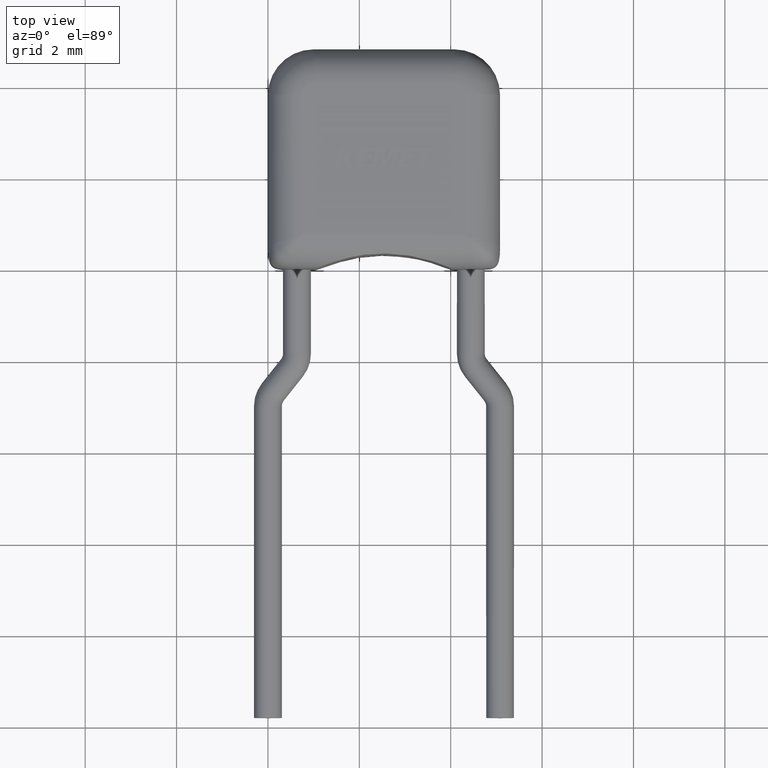
[diagram: clean part render]
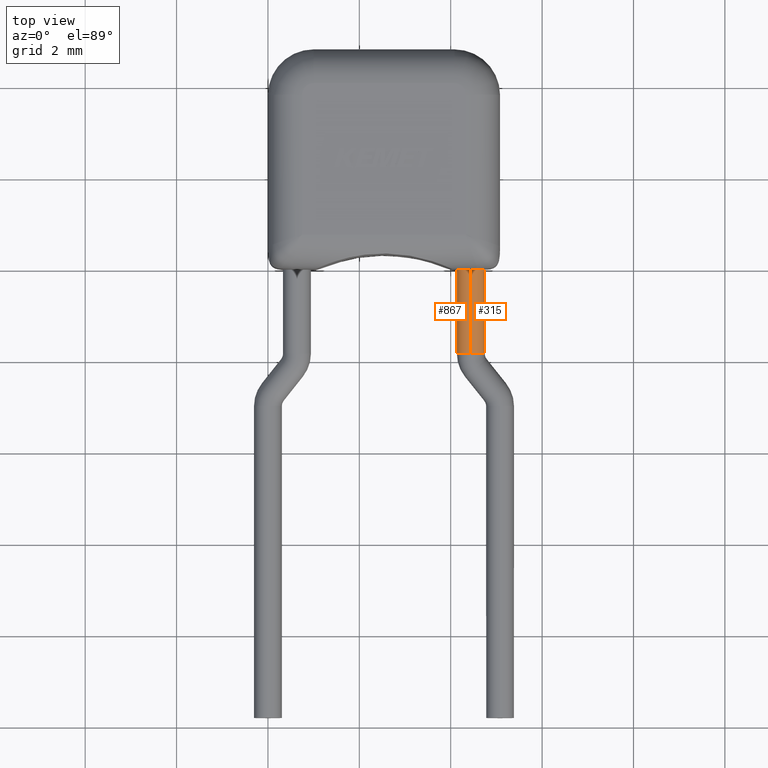
[diagram: same view with one multi-face feature highlighted, each face labeled with its STEP entity id]
A machine part, top view. The highlighted faces form ONE feature: a constant-radius fillet chain: 2 tangent blend faces with common blend radius 0.305 mm. The faces share edges in the B-rep.
Their STEP definitions:
[1] entity #867 (Cylinder):
#15 = EDGE_CURVE ( 'NONE', #3198, #2977, #6744, .T. ) ;
#96 = LINE ( 'NONE', #1403, #433 ) ;
#254 = CYLINDRICAL_SURFACE ( 'NONE', #5765, 0.3050000000000001600 ) ;
#261 = CARTESIAN_POINT ( 'NONE',  ( 4.440000000000000400, 0.0000000000000000000, 1.285000000000000100 ) ) ;
#377 = EDGE_CURVE ( 'NONE', #3198, #2475, #96, .T. ) ;
#433 = VECTOR ( 'NONE', #1952, 1000.000000000000000 ) ;
#482 = AXIS2_PLACEMENT_3D ( 'NONE', #5467, #4339, #1239 ) ;
#512 = DIRECTION ( 'NONE',  ( 0.0000000000000000000, 0.0000000000000000000, -1.000000000000000000 ) ) ;
#515 = EDGE_CURVE ( 'NONE', #2977, #1307, #3656, .T. ) ;
#781 = EDGE_LOOP ( 'NONE', ( #4700, #2373, #3534, #6088, #1464 ) ) ;
#867 = ADVANCED_FACE ( 'NONE', ( #1253 ), #254, .T. ) ;
#949 = EDGE_CURVE ( 'NONE', #2475, #3385, #3097, .T. ) ;
#1239 = DIRECTION ( 'NONE',  ( 0.0000000000000000000, 0.0000000000000000000, -1.000000000000000000 ) ) ;
#1253 = FACE_OUTER_BOUND ( 'NONE', #781, .T. ) ;
#1307 = VERTEX_POINT ( 'NONE', #1390 ) ;
#1390 = CARTESIAN_POINT ( 'NONE',  ( 4.440000000000000400, -1.833849470320894500, 1.285000000000000100 ) ) ;
#1403 = CARTESIAN_POINT ( 'NONE',  ( 4.440000000000000400, -1.833849470320894500, 1.895000000000000500 ) ) ;
#1464 = ORIENTED_EDGE ( 'NONE', *, *, #949, .T. ) ;
#1466 = CARTESIAN_POINT ( 'NONE',  ( 4.440000000000000400, -1.833849470320894500, 1.590000000000000300 ) ) ;
#1545 = AXIS2_PLACEMENT_3D ( 'NONE', #6359, #4156, #512 ) ;
#1952 = DIRECTION ( 'NONE',  ( -0.0000000000000000000, 1.000000000000000000, -0.0000000000000000000 ) ) ;
#2373 = ORIENTED_EDGE ( 'NONE', *, *, #515, .F. ) ;
#2394 = CARTESIAN_POINT ( 'NONE',  ( 4.440000000000000400, -1.833849470320894500, 1.895000000000000500 ) ) ;
#2475 = VERTEX_POINT ( 'NONE', #5383 ) ;
#2551 = VECTOR ( 'NONE', #3922, 1000.000000000000000 ) ;
#2977 = VERTEX_POINT ( 'NONE', #3117 ) ;
#3035 = AXIS2_PLACEMENT_3D ( 'NONE', #6213, #4132, #4650 ) ;
#3097 = CIRCLE ( 'NONE', #3035, 0.3050000000000001600 ) ;
#3117 = CARTESIAN_POINT ( 'NONE',  ( 4.134999999999999800, -1.833849470320894500, 1.590000000000000300 ) ) ;
#3198 = VERTEX_POINT ( 'NONE', #2394 ) ;
#3385 = VERTEX_POINT ( 'NONE', #261 ) ;
#3534 = ORIENTED_EDGE ( 'NONE', *, *, #15, .F. ) ;
#3558 = DIRECTION ( 'NONE',  ( 0.0000000000000000000, 0.0000000000000000000, 1.000000000000000000 ) ) ;
#3656 = CIRCLE ( 'NONE', #1545, 0.3050000000000001600 ) ;
#3922 = DIRECTION ( 'NONE',  ( -0.0000000000000000000, 1.000000000000000000, -0.0000000000000000000 ) ) ;
#3972 = CARTESIAN_POINT ( 'NONE',  ( 4.440000000000000400, -1.833849470320894500, 1.285000000000000100 ) ) ;
#4132 = DIRECTION ( 'NONE',  ( 0.0000000000000000000, -1.000000000000000000, 0.0000000000000000000 ) ) ;
#4156 = DIRECTION ( 'NONE',  ( 0.0000000000000000000, -1.000000000000000000, 0.0000000000000000000 ) ) ;
#4339 = DIRECTION ( 'NONE',  ( 0.0000000000000000000, -1.000000000000000000, 0.0000000000000000000 ) ) ;
#4650 = DIRECTION ( 'NONE',  ( 0.0000000000000000000, 0.0000000000000000000, -1.000000000000000000 ) ) ;
#4700 = ORIENTED_EDGE ( 'NONE', *, *, #5390, .F. ) ;
#5383 = CARTESIAN_POINT ( 'NONE',  ( 4.440000000000000400, 0.0000000000000000000, 1.895000000000000500 ) ) ;
#5390 = EDGE_CURVE ( 'NONE', #1307, #3385, #6205, .T. ) ;
#5467 = CARTESIAN_POINT ( 'NONE',  ( 4.440000000000000400, -1.833849470320894500, 1.590000000000000300 ) ) ;
#5698 = DIRECTION ( 'NONE',  ( -0.0000000000000000000, 1.000000000000000000, -0.0000000000000000000 ) ) ;
#5765 = AXIS2_PLACEMENT_3D ( 'NONE', #1466, #5698, #3558 ) ;
#6088 = ORIENTED_EDGE ( 'NONE', *, *, #377, .T. ) ;
#6205 = LINE ( 'NONE', #3972, #2551 ) ;
#6213 = CARTESIAN_POINT ( 'NONE',  ( 4.440000000000000400, 0.0000000000000000000, 1.590000000000000300 ) ) ;
#6359 = CARTESIAN_POINT ( 'NONE',  ( 4.440000000000000400, -1.833849470320894500, 1.590000000000000300 ) ) ;
#6744 = CIRCLE ( 'NONE', #482, 0.3050000000000001600 ) ;
[2] entity #315 (Cylinder):
#96 = LINE ( 'NONE', #1403, #433 ) ;
#112 = EDGE_CURVE ( 'NONE', #3385, #6525, #4169, .T. ) ;
#121 = AXIS2_PLACEMENT_3D ( 'NONE', #2948, #5612, #2415 ) ;
#177 = CIRCLE ( 'NONE', #5471, 0.3050000000000001600 ) ;
#244 = EDGE_LOOP ( 'NONE', ( #4265, #3948, #689, #2068, #2367, #5429, #1955 ) ) ;
#257 = EDGE_CURVE ( 'NONE', #1307, #4507, #4406, .T. ) ;
#261 = CARTESIAN_POINT ( 'NONE',  ( 4.440000000000000400, 0.0000000000000000000, 1.285000000000000100 ) ) ;
#309 = CARTESIAN_POINT ( 'NONE',  ( 4.440000000000000400, -1.833849470320894500, 1.590000000000000300 ) ) ;
#315 = ADVANCED_FACE ( 'NONE', ( #5475 ), #5896, .T. ) ;
#368 = VERTEX_POINT ( 'NONE', #950 ) ;
#377 = EDGE_CURVE ( 'NONE', #3198, #2475, #96, .T. ) ;
#399 = CARTESIAN_POINT ( 'NONE',  ( 4.440000000000000400, 0.0000000000000000000, 1.590000000000000300 ) ) ;
#433 = VECTOR ( 'NONE', #1952, 1000.000000000000000 ) ;
#475 = CARTESIAN_POINT ( 'NONE',  ( 4.440000000000000400, -1.833849470320894500, 1.590000000000000300 ) ) ;
#494 = DIRECTION ( 'NONE',  ( 0.0000000000000000000, -1.000000000000000000, 0.0000000000000000000 ) ) ;
#623 = CARTESIAN_POINT ( 'NONE',  ( 4.440000000000000400, 0.0000000000000000000, 1.590000000000000300 ) ) ;
#689 = ORIENTED_EDGE ( 'NONE', *, *, #112, .T. ) ;
#950 = CARTESIAN_POINT ( 'NONE',  ( 4.580000000000000100, -5.421010862427522200E-017, 1.860970478096773100 ) ) ;
#1051 = AXIS2_PLACEMENT_3D ( 'NONE', #3627, #4637, #1998 ) ;
#1307 = VERTEX_POINT ( 'NONE', #1390 ) ;
#1390 = CARTESIAN_POINT ( 'NONE',  ( 4.440000000000000400, -1.833849470320894500, 1.285000000000000100 ) ) ;
#1403 = CARTESIAN_POINT ( 'NONE',  ( 4.440000000000000400, -1.833849470320894500, 1.895000000000000500 ) ) ;
#1748 = DIRECTION ( 'NONE',  ( 0.0000000000000000000, -1.000000000000000000, 0.0000000000000000000 ) ) ;
#1768 = CIRCLE ( 'NONE', #4950, 0.3050000000000001600 ) ;
#1952 = DIRECTION ( 'NONE',  ( -0.0000000000000000000, 1.000000000000000000, -0.0000000000000000000 ) ) ;
#1955 = ORIENTED_EDGE ( 'NONE', *, *, #4601, .F. ) ;
#1998 = DIRECTION ( 'NONE',  ( 0.0000000000000000000, 0.0000000000000000000, 1.000000000000000000 ) ) ;
#2068 = ORIENTED_EDGE ( 'NONE', *, *, #4292, .T. ) ;
#2367 = ORIENTED_EDGE ( 'NONE', *, *, #3543, .T. ) ;
#2394 = CARTESIAN_POINT ( 'NONE',  ( 4.440000000000000400, -1.833849470320894500, 1.895000000000000500 ) ) ;
#2396 = DIRECTION ( 'NONE',  ( 0.0000000000000000000, 0.0000000000000000000, -1.000000000000000000 ) ) ;
#2415 = DIRECTION ( 'NONE',  ( 0.0000000000000000000, 0.0000000000000000000, -1.000000000000000000 ) ) ;
#2417 = CIRCLE ( 'NONE', #5206, 0.3050000000000001600 ) ;
#2475 = VERTEX_POINT ( 'NONE', #5383 ) ;
#2551 = VECTOR ( 'NONE', #3922, 1000.000000000000000 ) ;
#2786 = DIRECTION ( 'NONE',  ( 0.0000000000000000000, 0.0000000000000000000, -1.000000000000000000 ) ) ;
#2948 = CARTESIAN_POINT ( 'NONE',  ( 4.440000000000000400, 0.0000000000000000000, 1.590000000000000300 ) ) ;
#3198 = VERTEX_POINT ( 'NONE', #2394 ) ;
#3385 = VERTEX_POINT ( 'NONE', #261 ) ;
#3543 = EDGE_CURVE ( 'NONE', #368, #2475, #2417, .T. ) ;
#3627 = CARTESIAN_POINT ( 'NONE',  ( 4.440000000000000400, -1.833849470320894500, 1.590000000000000300 ) ) ;
#3806 = CARTESIAN_POINT ( 'NONE',  ( 4.745000000000001000, -1.833849470320894500, 1.590000000000000300 ) ) ;
#3922 = DIRECTION ( 'NONE',  ( -0.0000000000000000000, 1.000000000000000000, -0.0000000000000000000 ) ) ;
#3948 = ORIENTED_EDGE ( 'NONE', *, *, #5390, .T. ) ;
#3972 = CARTESIAN_POINT ( 'NONE',  ( 4.440000000000000400, -1.833849470320894500, 1.285000000000000100 ) ) ;
#4169 = CIRCLE ( 'NONE', #121, 0.3050000000000001600 ) ;
#4265 = ORIENTED_EDGE ( 'NONE', *, *, #257, .F. ) ;
#4292 = EDGE_CURVE ( 'NONE', #6525, #368, #1768, .T. ) ;
#4406 = CIRCLE ( 'NONE', #5182, 0.3050000000000001600 ) ;
#4507 = VERTEX_POINT ( 'NONE', #3806 ) ;
#4601 = EDGE_CURVE ( 'NONE', #4507, #3198, #177, .T. ) ;
#4637 = DIRECTION ( 'NONE',  ( -0.0000000000000000000, 1.000000000000000000, -0.0000000000000000000 ) ) ;
#4730 = DIRECTION ( 'NONE',  ( 0.0000000000000000000, 0.0000000000000000000, -1.000000000000000000 ) ) ;
#4950 = AXIS2_PLACEMENT_3D ( 'NONE', #399, #5745, #5146 ) ;
#5146 = DIRECTION ( 'NONE',  ( 0.0000000000000000000, 0.0000000000000000000, -1.000000000000000000 ) ) ;
#5182 = AXIS2_PLACEMENT_3D ( 'NONE', #309, #5567, #2396 ) ;
#5206 = AXIS2_PLACEMENT_3D ( 'NONE', #623, #1748, #2786 ) ;
#5383 = CARTESIAN_POINT ( 'NONE',  ( 4.440000000000000400, 0.0000000000000000000, 1.895000000000000500 ) ) ;
#5390 = EDGE_CURVE ( 'NONE', #1307, #3385, #6205, .T. ) ;
#5429 = ORIENTED_EDGE ( 'NONE', *, *, #377, .F. ) ;
#5471 = AXIS2_PLACEMENT_3D ( 'NONE', #475, #494, #4730 ) ;
#5475 = FACE_OUTER_BOUND ( 'NONE', #244, .T. ) ;
#5567 = DIRECTION ( 'NONE',  ( 0.0000000000000000000, -1.000000000000000000, 0.0000000000000000000 ) ) ;
#5612 = DIRECTION ( 'NONE',  ( 0.0000000000000000000, -1.000000000000000000, 0.0000000000000000000 ) ) ;
#5745 = DIRECTION ( 'NONE',  ( 0.0000000000000000000, -1.000000000000000000, 0.0000000000000000000 ) ) ;
#5896 = CYLINDRICAL_SURFACE ( 'NONE', #1051, 0.3050000000000001600 ) ;
#6156 = CARTESIAN_POINT ( 'NONE',  ( 4.580000000000001000, 0.0000000000000000000, 1.319029521903215800 ) ) ;
#6205 = LINE ( 'NONE', #3972, #2551 ) ;
#6525 = VERTEX_POINT ( 'NONE', #6156 ) ;